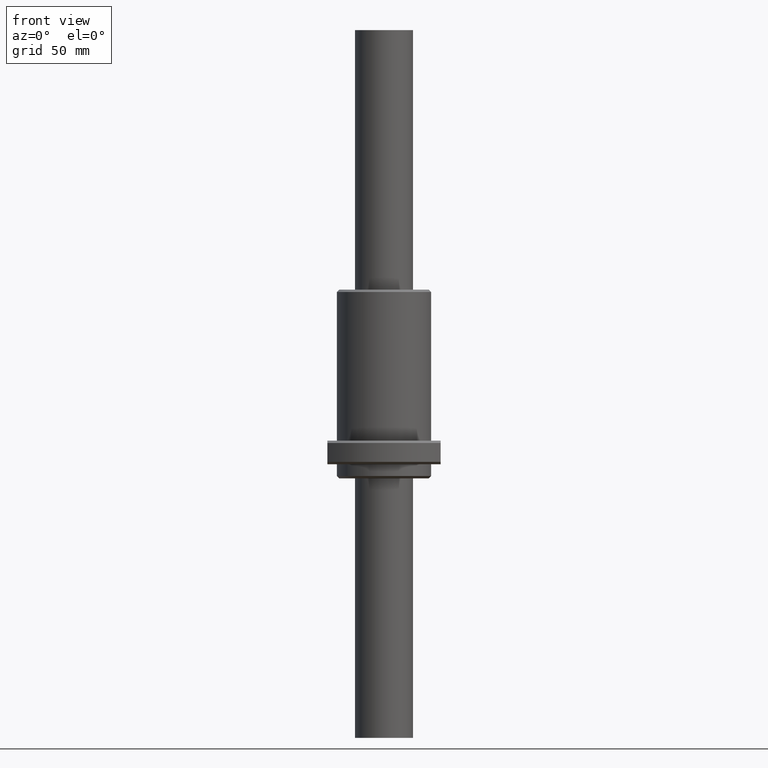
[diagram: clean part render]
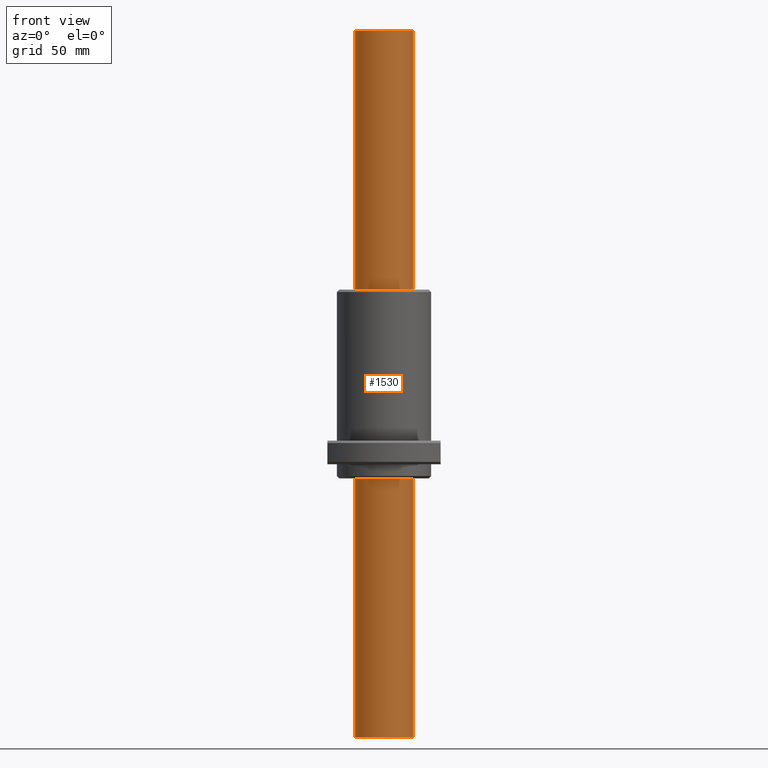
[diagram: same view with one face highlighted and labeled with its STEP entity id]
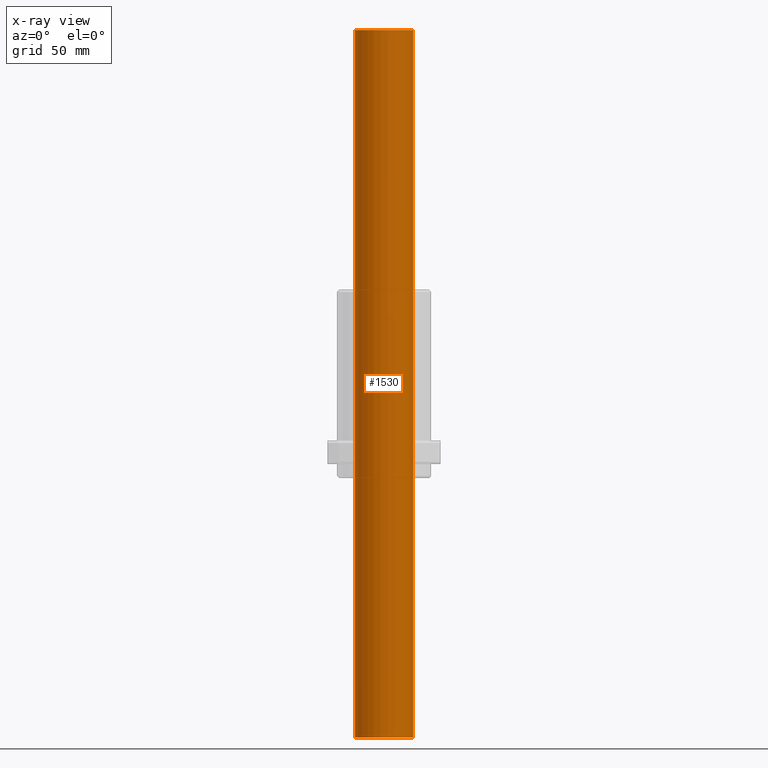
[diagram: x-ray of the same camera — body ghosted, the highlighted face saturated]
A machine part, front view. The second image highlights one B-rep face of the part: STEP entity #1530.
The next image is the same camera in x-ray: the body ghosted, the highlighted face saturated — about 0% of this face is hidden behind the body in this view.
In plain terms, the highlighted cylindrical surface (edge-blend (fillet) strip) has radius 12.3 mm, axis along (0, 0, 1).
Its self-contained STEP definition (entity closure, byte-faithful):
#4 = CYLINDRICAL_SURFACE ( 'NONE', #1655, 12.30000000000000100 ) ;
#47 = VERTEX_POINT ( 'NONE', #1754 ) ;
#109 = ORIENTED_EDGE ( 'NONE', *, *, #1747, .T. ) ;
#347 = FACE_OUTER_BOUND ( 'NONE', #1011, .T. ) ;
#376 = VERTEX_POINT ( 'NONE', #1198 ) ;
#446 = AXIS2_PLACEMENT_3D ( 'NONE', #512, #498, #496 ) ;
#464 = AXIS2_PLACEMENT_3D ( 'NONE', #1025, #1022, #1021 ) ;
#496 = DIRECTION ( 'NONE',  ( 1.000000000000000000, 0.0000000000000000000, 0.0000000000000000000 ) ) ;
#498 = DIRECTION ( 'NONE',  ( 0.0000000000000000000, 0.0000000000000000000, 1.000000000000000000 ) ) ;
#512 = CARTESIAN_POINT ( 'NONE',  ( 0.0000000000000000000, 0.0000000000000000000, 0.0000000000000000000 ) ) ;
#537 = CIRCLE ( 'NONE', #446, 12.30000000000000100 ) ;
#570 = CARTESIAN_POINT ( 'NONE',  ( 12.30000000000000100, 0.0000000000000000000, -300.0000000000000000 ) ) ;
#577 = LINE ( 'NONE', #570, #789 ) ;
#770 = ORIENTED_EDGE ( 'NONE', *, *, #1354, .F. ) ;
#789 = VECTOR ( 'NONE', #1695, 1000.000000000000000 ) ;
#797 = CIRCLE ( 'NONE', #464, 12.30000000000000100 ) ;
#811 = DIRECTION ( 'NONE',  ( 1.000000000000000000, 0.0000000000000000000, 0.0000000000000000000 ) ) ;
#813 = DIRECTION ( 'NONE',  ( 0.0000000000000000000, 0.0000000000000000000, 1.000000000000000000 ) ) ;
#819 = CARTESIAN_POINT ( 'NONE',  ( 0.0000000000000000000, 0.0000000000000000000, -300.0000000000000000 ) ) ;
#823 = DIRECTION ( 'NONE',  ( 0.0000000000000000000, 0.0000000000000000000, 1.000000000000000000 ) ) ;
#829 = CARTESIAN_POINT ( 'NONE',  ( -12.30000000000000100, 1.506315562951244400E-015, -300.0000000000000000 ) ) ;
#830 = LINE ( 'NONE', #829, #1787 ) ;
#992 = ORIENTED_EDGE ( 'NONE', *, *, #1522, .F. ) ;
#1011 = EDGE_LOOP ( 'NONE', ( #992, #770, #109, #1818 ) ) ;
#1021 = DIRECTION ( 'NONE',  ( 1.000000000000000000, 0.0000000000000000000, 0.0000000000000000000 ) ) ;
#1022 = DIRECTION ( 'NONE',  ( -0.0000000000000000000, -0.0000000000000000000, -1.000000000000000000 ) ) ;
#1025 = CARTESIAN_POINT ( 'NONE',  ( 0.0000000000000000000, 0.0000000000000000000, -300.0000000000000000 ) ) ;
#1065 = VERTEX_POINT ( 'NONE', #1456 ) ;
#1137 = CARTESIAN_POINT ( 'NONE',  ( -12.30000000000000100, 1.506315562951244400E-015, -300.0000000000000000 ) ) ;
#1198 = CARTESIAN_POINT ( 'NONE',  ( -12.30000000000000100, 1.506315562951244400E-015, 0.0000000000000000000 ) ) ;
#1247 = VERTEX_POINT ( 'NONE', #1137 ) ;
#1354 = EDGE_CURVE ( 'NONE', #1065, #1247, #797, .T. ) ;
#1456 = CARTESIAN_POINT ( 'NONE',  ( 12.30000000000000100, 0.0000000000000000000, -300.0000000000000000 ) ) ;
#1522 = EDGE_CURVE ( 'NONE', #1247, #376, #830, .T. ) ;
#1530 = ADVANCED_FACE ( 'NONE', ( #347 ), #4, .T. ) ;
#1655 = AXIS2_PLACEMENT_3D ( 'NONE', #819, #813, #811 ) ;
#1695 = DIRECTION ( 'NONE',  ( 0.0000000000000000000, 0.0000000000000000000, 1.000000000000000000 ) ) ;
#1747 = EDGE_CURVE ( 'NONE', #1065, #47, #577, .T. ) ;
#1754 = CARTESIAN_POINT ( 'NONE',  ( 12.30000000000000100, 0.0000000000000000000, 0.0000000000000000000 ) ) ;
#1787 = VECTOR ( 'NONE', #823, 1000.000000000000000 ) ;
#1798 = EDGE_CURVE ( 'NONE', #376, #47, #537, .T. ) ;
#1818 = ORIENTED_EDGE ( 'NONE', *, *, #1798, .F. ) ;